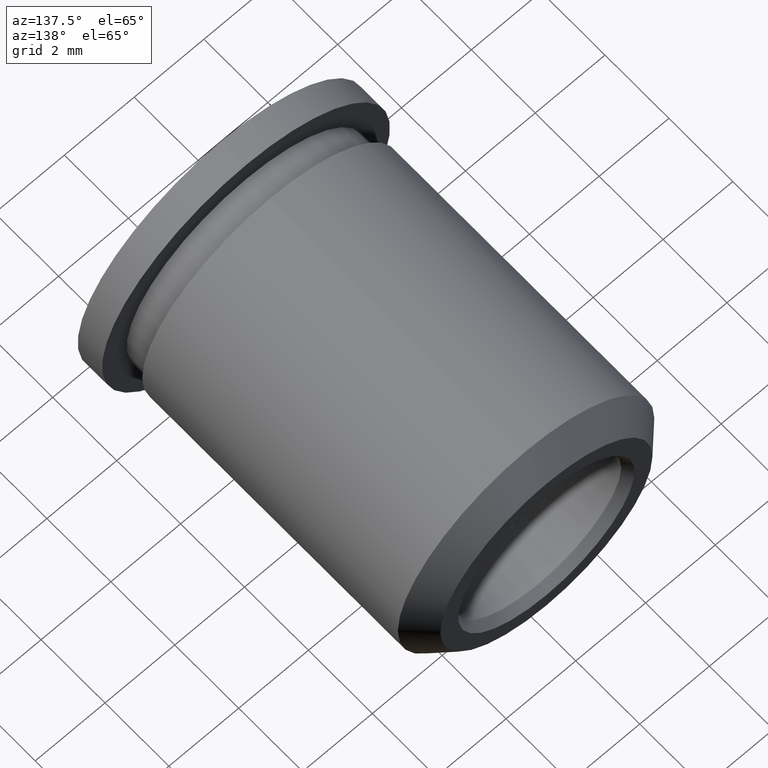
[diagram: clean part render]
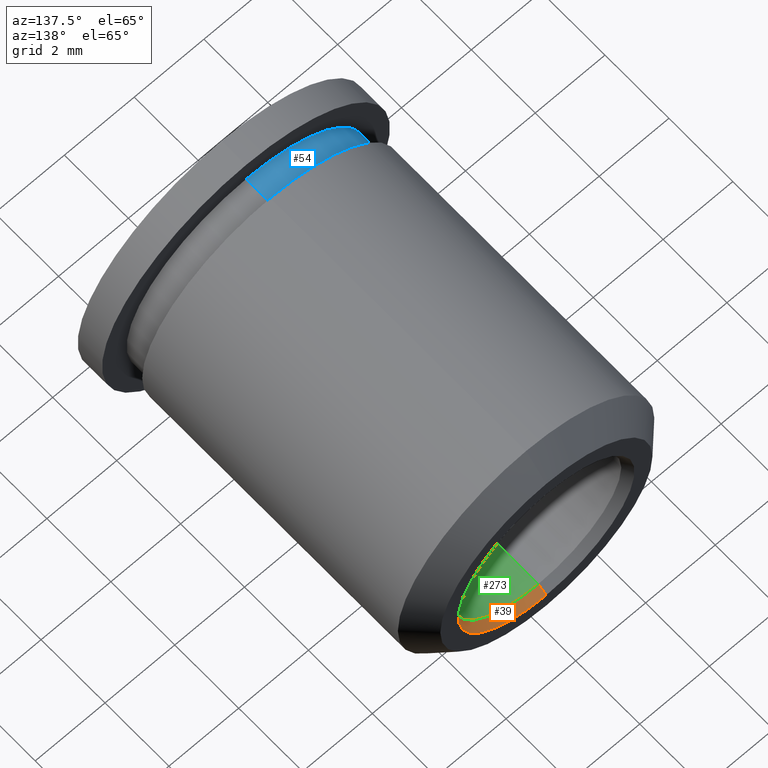
[diagram: same view with three faces highlighted in distinct colors, each labeled with its STEP entity id]
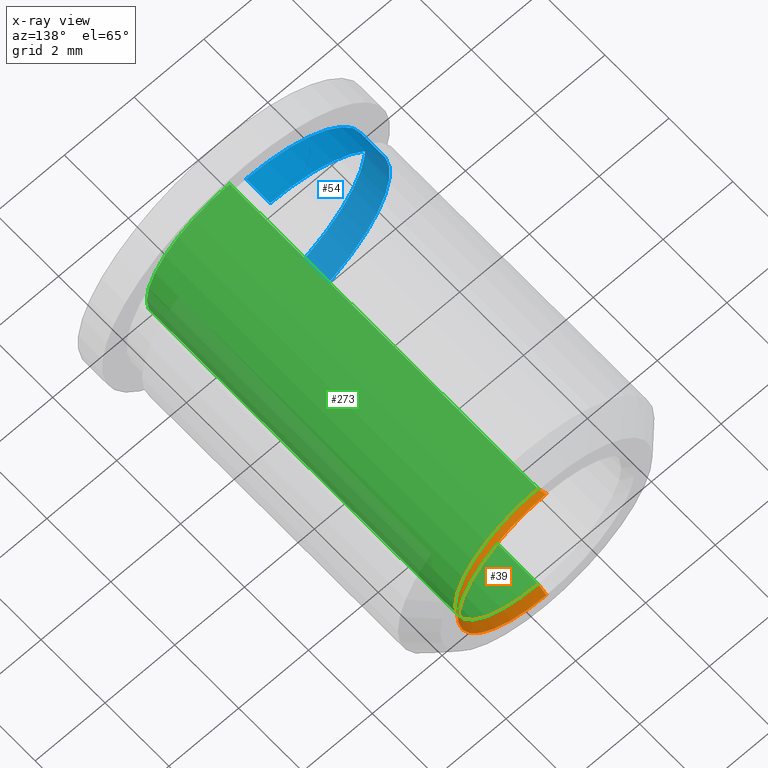
[diagram: x-ray of the same camera — body ghosted, the three highlighted faces saturated]
A machine part, auxiliary view with three faces highlighted in distinct colors.
The next image is the same camera in x-ray (body ghosted, the three faces saturated) — at least one of them is partly hidden behind the body in this view.
Their STEP definitions:

[orange] entity #39 — the highlighted conical surface has half-angle 30 deg.
#16 = EDGE_CURVE ( 'NONE', #96, #89, #157, .T. ) ;
#19 = ORIENTED_EDGE ( 'NONE', *, *, #76, .F. ) ;
#20 = ORIENTED_EDGE ( 'NONE', *, *, #21, .F. ) ;
#21 = EDGE_CURVE ( 'NONE', #236, #280, #179, .T. ) ;
#22 = ORIENTED_EDGE ( 'NONE', *, *, #82, .T. ) ;
#39 = ADVANCED_FACE ( 'NONE', ( #312 ), #383, .F. ) ;
#40 = EDGE_LOOP ( 'NONE', ( #19, #20, #22, #275 ) ) ;
#76 = EDGE_CURVE ( 'NONE', #280, #89, #520, .T. ) ;
#82 = EDGE_CURVE ( 'NONE', #236, #96, #561, .T. ) ;
#89 = VERTEX_POINT ( 'NONE', #482 ) ;
#96 = VERTEX_POINT ( 'NONE', #475 ) ;
#153 = CARTESIAN_POINT ( 'NONE',  ( 1.508592567273786700E-015, 5.079999999999999200, 0.0000000000000000000 ) ) ;
#154 = DIRECTION ( 'NONE',  ( 0.0000000000000000000, 0.0000000000000000000, 1.000000000000000000 ) ) ;
#155 = DIRECTION ( 'NONE',  ( 0.0000000000000000000, 1.000000000000000000, 0.0000000000000000000 ) ) ;
#156 = AXIS2_PLACEMENT_3D ( 'NONE', #153, #155, #154 ) ;
#157 = CIRCLE ( 'NONE', #156, 2.527896968374166300 ) ;
#176 = DIRECTION ( 'NONE',  ( 0.0000000000000000000, 0.0000000000000000000, 1.000000000000000000 ) ) ;
#177 = DIRECTION ( 'NONE',  ( 0.0000000000000000000, 1.000000000000000000, 0.0000000000000000000 ) ) ;
#178 = AXIS2_PLACEMENT_3D ( 'NONE', #231, #177, #176 ) ;
#179 = CIRCLE ( 'NONE', #178, 2.381250000000000500 ) ;
#231 = CARTESIAN_POINT ( 'NONE',  ( 1.508592567273786700E-015, 4.826000000000000500, 0.0000000000000000000 ) ) ;
#236 = VERTEX_POINT ( 'NONE', #715 ) ;
#275 = ORIENTED_EDGE ( 'NONE', *, *, #16, .T. ) ;
#280 = VERTEX_POINT ( 'NONE', #717 ) ;
#312 = FACE_OUTER_BOUND ( 'NONE', #40, .T. ) ;
#325 = DIRECTION ( 'NONE',  ( 0.0000000000000000000, 0.0000000000000000000, 1.000000000000000000 ) ) ;
#360 = CARTESIAN_POINT ( 'NONE',  ( 1.508592567273786700E-015, 4.826000000000000500, 0.0000000000000000000 ) ) ;
#361 = AXIS2_PLACEMENT_3D ( 'NONE', #360, #388, #325 ) ;
#383 = CONICAL_SURFACE ( 'NONE', #361, 2.381250000000000500, 0.5235987755983032600 ) ;
#388 = DIRECTION ( 'NONE',  ( 0.0000000000000000000, 1.000000000000000000, 0.0000000000000000000 ) ) ;
#447 = DIRECTION ( 'NONE',  ( 6.123233995736814100E-017, 0.8660254037844364900, -0.5000000000000037700 ) ) ;
#475 = CARTESIAN_POINT ( 'NONE',  ( 1.508592567273786700E-015, 5.079999999999999200, 2.527896968374166300 ) ) ;
#482 = CARTESIAN_POINT ( 'NONE',  ( 1.818170660363158800E-015, 5.079999999999999200, -2.527896968374166300 ) ) ;
#518 = VECTOR ( 'NONE', #447, 999.9999999999998900 ) ;
#519 = CARTESIAN_POINT ( 'NONE',  ( 1.800211586320750200E-015, 4.826000000000000500, -2.381250000000000500 ) ) ;
#520 = LINE ( 'NONE', #519, #518 ) ;
#558 = DIRECTION ( 'NONE',  ( 0.0000000000000000000, 0.8660254037844364900, 0.5000000000000037700 ) ) ;
#559 = VECTOR ( 'NONE', #558, 999.9999999999998900 ) ;
#560 = CARTESIAN_POINT ( 'NONE',  ( 1.508592567273786700E-015, 4.826000000000000500, 2.381250000000000500 ) ) ;
#561 = LINE ( 'NONE', #560, #559 ) ;
#715 = CARTESIAN_POINT ( 'NONE',  ( 1.508592567273786700E-015, 4.826000000000000500, 2.381250000000000500 ) ) ;
#717 = CARTESIAN_POINT ( 'NONE',  ( 1.809191123341954300E-015, 4.826000000000000500, -2.381250000000000500 ) ) ;

[blue] entity #54 — the highlighted cylindrical surface (partial cylindrical patch) has radius 3.4226 mm, axis along (0, 1, 0).
#5 = EDGE_LOOP ( 'NONE', ( #60, #44, #59, #37 ) ) ;
#6 = EDGE_CURVE ( 'NONE', #117, #120, #211, .T. ) ;
#35 = EDGE_CURVE ( 'NONE', #117, #92, #355, .T. ) ;
#37 = ORIENTED_EDGE ( 'NONE', *, *, #43, .F. ) ;
#43 = EDGE_CURVE ( 'NONE', #92, #94, #352, .T. ) ;
#44 = ORIENTED_EDGE ( 'NONE', *, *, #6, .T. ) ;
#54 = ADVANCED_FACE ( 'NONE', ( #368 ), #378, .T. ) ;
#59 = ORIENTED_EDGE ( 'NONE', *, *, #80, .T. ) ;
#60 = ORIENTED_EDGE ( 'NONE', *, *, #35, .F. ) ;
#80 = EDGE_CURVE ( 'NONE', #120, #94, #446, .T. ) ;
#92 = VERTEX_POINT ( 'NONE', #436 ) ;
#94 = VERTEX_POINT ( 'NONE', #435 ) ;
#117 = VERTEX_POINT ( 'NONE', #461 ) ;
#120 = VERTEX_POINT ( 'NONE', #605 ) ;
#188 = DIRECTION ( 'NONE',  ( 0.0000000000000000000, 0.0000000000000000000, 1.000000000000000000 ) ) ;
#208 = DIRECTION ( 'NONE',  ( 0.0000000000000000000, 1.000000000000000000, 0.0000000000000000000 ) ) ;
#209 = CARTESIAN_POINT ( 'NONE',  ( 1.508592567273786700E-015, -4.317999999999999600, 0.0000000000000000000 ) ) ;
#210 = AXIS2_PLACEMENT_3D ( 'NONE', #209, #208, #188 ) ;
#211 = CIRCLE ( 'NONE', #210, 3.422649999999999500 ) ;
#288 = DIRECTION ( 'NONE',  ( 0.0000000000000000000, 0.0000000000000000000, 1.000000000000000000 ) ) ;
#289 = DIRECTION ( 'NONE',  ( 0.0000000000000000000, 1.000000000000000000, 0.0000000000000000000 ) ) ;
#290 = AXIS2_PLACEMENT_3D ( 'NONE', #377, #289, #288 ) ;
#315 = VECTOR ( 'NONE', #353, 1000.000000000000000 ) ;
#348 = DIRECTION ( 'NONE',  ( 0.0000000000000000000, 0.0000000000000000000, 1.000000000000000000 ) ) ;
#349 = DIRECTION ( 'NONE',  ( 0.0000000000000000000, 1.000000000000000000, 0.0000000000000000000 ) ) ;
#350 = CARTESIAN_POINT ( 'NONE',  ( 1.508592567273786700E-015, -3.556000000000000900, 0.0000000000000000000 ) ) ;
#351 = AXIS2_PLACEMENT_3D ( 'NONE', #350, #349, #348 ) ;
#352 = CIRCLE ( 'NONE', #351, 3.422649999999999500 ) ;
#353 = DIRECTION ( 'NONE',  ( 0.0000000000000000000, 1.000000000000000000, 0.0000000000000000000 ) ) ;
#354 = CARTESIAN_POINT ( 'NONE',  ( 1.927746303983955100E-015, 5.080000000000000100, -3.422649999999999500 ) ) ;
#355 = LINE ( 'NONE', #354, #315 ) ;
#368 = FACE_OUTER_BOUND ( 'NONE', #5, .T. ) ;
#377 = CARTESIAN_POINT ( 'NONE',  ( 1.508592567273786700E-015, 5.080000000000000100, 0.0000000000000000000 ) ) ;
#378 = CYLINDRICAL_SURFACE ( 'NONE', #290, 3.422649999999999500 ) ;
#435 = CARTESIAN_POINT ( 'NONE',  ( 1.508592567273786700E-015, -3.556000000000000900, 3.422649999999999500 ) ) ;
#436 = CARTESIAN_POINT ( 'NONE',  ( 1.927746303983955100E-015, -3.556000000000000900, -3.422649999999999500 ) ) ;
#446 = LINE ( 'NONE', #536, #535 ) ;
#461 = CARTESIAN_POINT ( 'NONE',  ( 1.927746303983955100E-015, -4.317999999999999600, -3.422649999999999500 ) ) ;
#534 = DIRECTION ( 'NONE',  ( 0.0000000000000000000, 1.000000000000000000, 0.0000000000000000000 ) ) ;
#535 = VECTOR ( 'NONE', #534, 1000.000000000000000 ) ;
#536 = CARTESIAN_POINT ( 'NONE',  ( 1.508592567273786700E-015, 5.080000000000000100, 3.422649999999999500 ) ) ;
#605 = CARTESIAN_POINT ( 'NONE',  ( 1.508592567273786700E-015, -4.317999999999999600, 3.422649999999999500 ) ) ;

[green] entity #273 — the highlighted cylindrical surface (partial cylindrical patch) has radius 2.3813 mm, axis along (0, 1, 0).
#21 = EDGE_CURVE ( 'NONE', #236, #280, #179, .T. ) ;
#136 = ORIENTED_EDGE ( 'NONE', *, *, #207, .F. ) ;
#140 = VERTEX_POINT ( 'NONE', #619 ) ;
#166 = ORIENTED_EDGE ( 'NONE', *, *, #279, .F. ) ;
#176 = DIRECTION ( 'NONE',  ( 0.0000000000000000000, 0.0000000000000000000, 1.000000000000000000 ) ) ;
#177 = DIRECTION ( 'NONE',  ( 0.0000000000000000000, 1.000000000000000000, 0.0000000000000000000 ) ) ;
#178 = AXIS2_PLACEMENT_3D ( 'NONE', #231, #177, #176 ) ;
#179 = CIRCLE ( 'NONE', #178, 2.381250000000000500 ) ;
#192 = ORIENTED_EDGE ( 'NONE', *, *, #21, .T. ) ;
#204 = EDGE_CURVE ( 'NONE', #140, #236, #764, .T. ) ;
#207 = EDGE_CURVE ( 'NONE', #140, #243, #675, .T. ) ;
#231 = CARTESIAN_POINT ( 'NONE',  ( 1.508592567273786700E-015, 4.826000000000000500, 0.0000000000000000000 ) ) ;
#236 = VERTEX_POINT ( 'NONE', #715 ) ;
#243 = VERTEX_POINT ( 'NONE', #752 ) ;
#273 = ADVANCED_FACE ( 'NONE', ( #768 ), #729, .F. ) ;
#276 = ORIENTED_EDGE ( 'NONE', *, *, #204, .T. ) ;
#279 = EDGE_CURVE ( 'NONE', #243, #280, #721, .T. ) ;
#280 = VERTEX_POINT ( 'NONE', #717 ) ;
#285 = EDGE_LOOP ( 'NONE', ( #166, #136, #276, #192 ) ) ;
#619 = CARTESIAN_POINT ( 'NONE',  ( 1.508592567273786700E-015, -4.826000000000001400, 2.381250000000001000 ) ) ;
#674 = DIRECTION ( 'NONE',  ( 0.0000000000000000000, 1.000000000000000000, 0.0000000000000000000 ) ) ;
#675 = CIRCLE ( 'NONE', #770, 2.381250000000001000 ) ;
#694 = DIRECTION ( 'NONE',  ( 0.0000000000000000000, 0.0000000000000000000, 1.000000000000000000 ) ) ;
#695 = DIRECTION ( 'NONE',  ( 0.0000000000000000000, 1.000000000000000000, 0.0000000000000000000 ) ) ;
#696 = CARTESIAN_POINT ( 'NONE',  ( 1.508592567273786700E-015, 5.080000000000000100, 0.0000000000000000000 ) ) ;
#712 = VECTOR ( 'NONE', #674, 1000.000000000000000 ) ;
#715 = CARTESIAN_POINT ( 'NONE',  ( 1.508592567273786700E-015, 4.826000000000000500, 2.381250000000000500 ) ) ;
#717 = CARTESIAN_POINT ( 'NONE',  ( 1.809191123341954300E-015, 4.826000000000000500, -2.381250000000000500 ) ) ;
#718 = DIRECTION ( 'NONE',  ( 0.0000000000000000000, 1.000000000000000000, 0.0000000000000000000 ) ) ;
#719 = VECTOR ( 'NONE', #718, 1000.000000000000000 ) ;
#720 = CARTESIAN_POINT ( 'NONE',  ( 1.800211586320750200E-015, 5.080000000000000100, -2.381250000000000500 ) ) ;
#721 = LINE ( 'NONE', #720, #719 ) ;
#728 = DIRECTION ( 'NONE',  ( 0.0000000000000000000, 0.0000000000000000000, 1.000000000000000000 ) ) ;
#729 = CYLINDRICAL_SURFACE ( 'NONE', #730, 2.381250000000000500 ) ;
#730 = AXIS2_PLACEMENT_3D ( 'NONE', #696, #695, #694 ) ;
#752 = CARTESIAN_POINT ( 'NONE',  ( 1.800211586320750200E-015, -4.826000000000001400, -2.381250000000001000 ) ) ;
#759 = DIRECTION ( 'NONE',  ( 0.0000000000000000000, 1.000000000000000000, 0.0000000000000000000 ) ) ;
#760 = CARTESIAN_POINT ( 'NONE',  ( 1.508592567273786700E-015, -4.826000000000001400, 0.0000000000000000000 ) ) ;
#764 = LINE ( 'NONE', #771, #712 ) ;
#768 = FACE_OUTER_BOUND ( 'NONE', #285, .T. ) ;
#770 = AXIS2_PLACEMENT_3D ( 'NONE', #760, #759, #728 ) ;
#771 = CARTESIAN_POINT ( 'NONE',  ( 1.508592567273786700E-015, 5.080000000000000100, 2.381250000000000500 ) ) ;